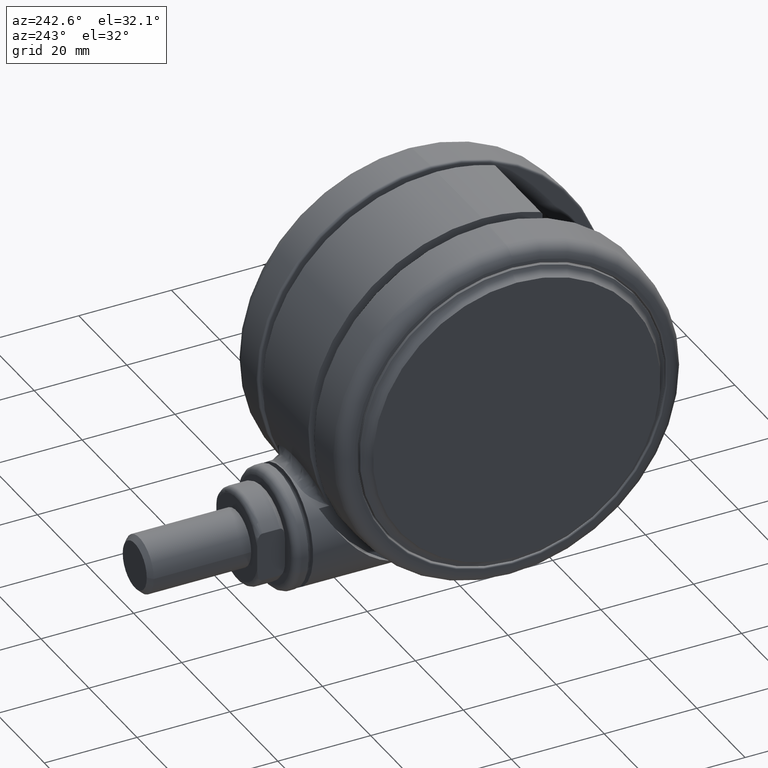
[diagram: clean part render]
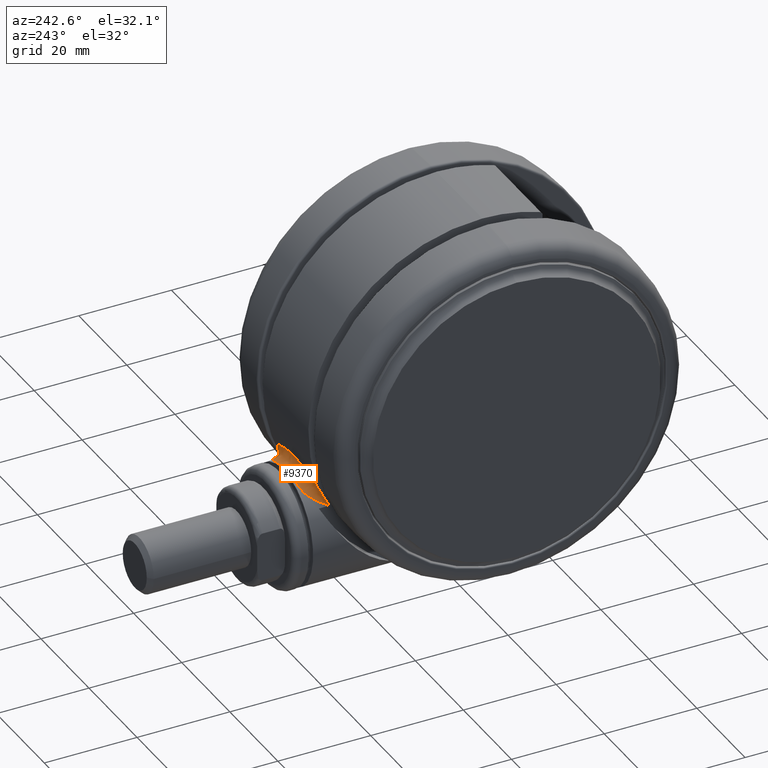
[diagram: same view with one face highlighted and labeled with its STEP entity id]
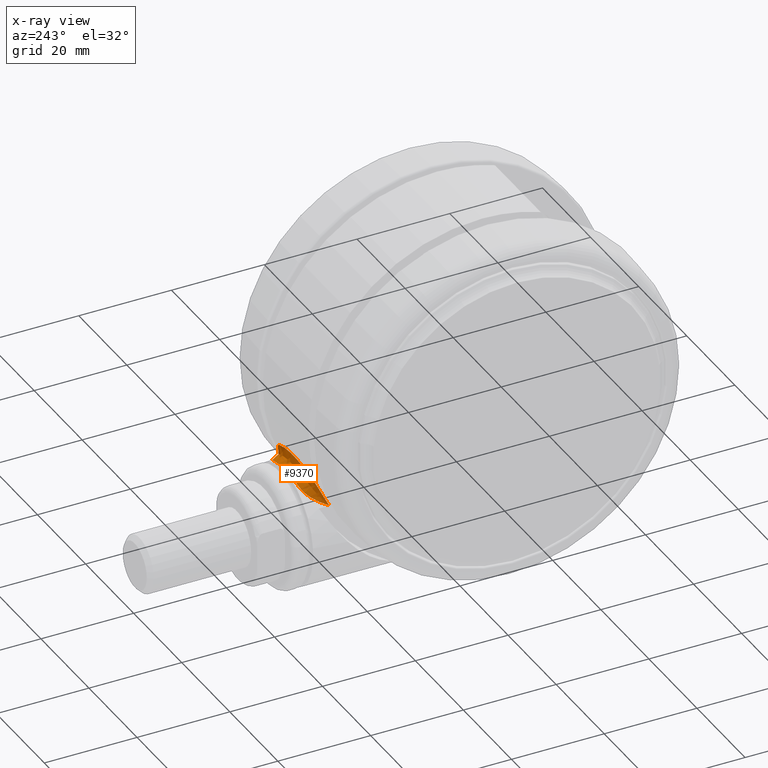
[diagram: x-ray of the same camera — body ghosted, the highlighted face saturated]
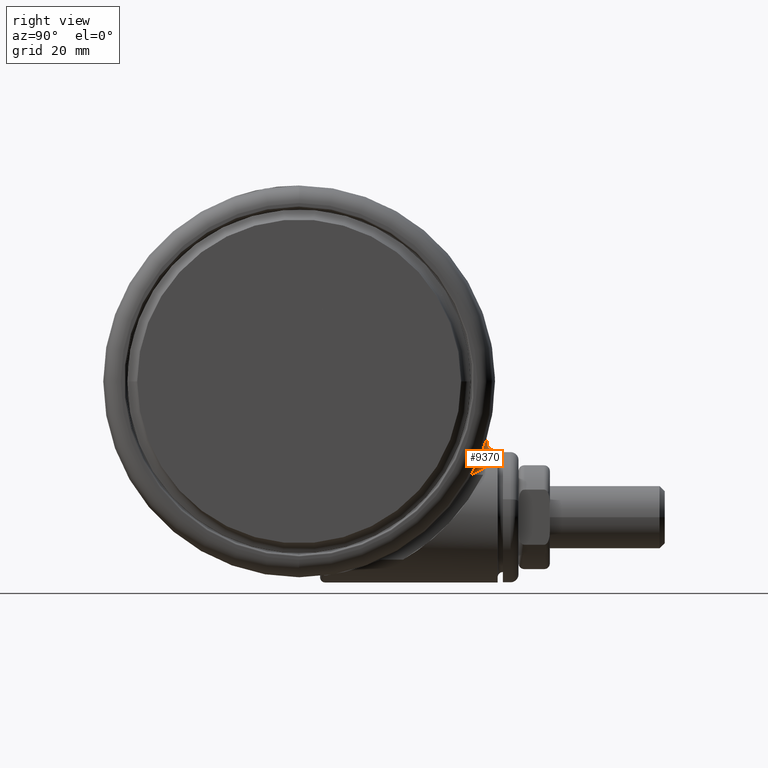
[diagram: same view with one face highlighted and labeled with its STEP entity id]
A machine part, auxiliary view. The second image highlights one B-rep face of the part: STEP entity #9370.
The next image is the same camera in x-ray: the body ghosted, the highlighted face saturated — about 0% of this face is hidden behind the body in this view.
A second angle (right view) of the same face is appended — the face is thin or edge-on in the first view.
In plain terms, the highlighted face is a freeform B-spline surface patch.
Its self-contained STEP definition (entity closure, byte-faithful):
#34 = CARTESIAN_POINT ( 'NONE',  ( -37.17807138266415000, 15.09026291100110500, -29.96931778137910400 ) ) ;
#238 = CARTESIAN_POINT ( 'NONE',  ( -37.74675141526227400, 13.61891928014333300, -25.58784706408022200 ) ) ;
#1056 = CARTESIAN_POINT ( 'NONE',  ( -37.03860752497755000, 15.27131529008433100, -17.42821774746808900 ) ) ;
#1061 = CARTESIAN_POINT ( 'NONE',  ( -34.17374281429799500, 15.55176465226365700, -16.95313922101129800 ) ) ;
#1237 = CARTESIAN_POINT ( 'NONE',  ( -34.39897654707523600, 17.17299355057763300, -14.99934645520417400 ) ) ;
#1240 = CARTESIAN_POINT ( 'NONE',  ( -35.04889504059254800, 13.60054897887007500, -25.45309923289870500 ) ) ;
#1432 = CARTESIAN_POINT ( 'NONE',  ( -33.62797461076387900, 16.62257758083178100, -32.13677909873963800 ) ) ;
#1636 = CARTESIAN_POINT ( 'NONE',  ( -36.85258640456079600, 15.48131111592417700, -17.09279901653389900 ) ) ;
#1818 = CARTESIAN_POINT ( 'NONE',  ( -37.73459447200993800, 13.65261988769249700, -25.81324177493818800 ) ) ;
#1833 = CARTESIAN_POINT ( 'NONE',  ( -33.74855305055628200, 16.34886742942891400, -14.48777842653169900 ) ) ;
#2004 = CARTESIAN_POINT ( 'NONE',  ( -34.19048319528715800, 17.28573835153243700, -32.81346263655697700 ) ) ;
#2018 = CARTESIAN_POINT ( 'NONE',  ( -34.80854054434564700, 13.95099757001450200, -15.45932252858041300 ) ) ;
#2227 = CARTESIAN_POINT ( 'NONE',  ( -35.83727846488871200, 11.04591427257370700, -26.13620901884722900 ) ) ;
#2421 = CARTESIAN_POINT ( 'NONE',  ( -35.05358651318327600, 13.32279263253058100, -31.70588074199074700 ) ) ;
#2608 = CARTESIAN_POINT ( 'NONE',  ( -34.25546440058223400, 15.26081914461748000, -32.92112524220795000 ) ) ;
#3488 = CARTESIAN_POINT ( 'NONE',  ( -34.85765492627155000, 13.83399860604602300, -15.50841076110303600 ) ) ;
#3695 = CARTESIAN_POINT ( 'NONE',  ( -35.83645361958053100, 11.04534839219524200, -25.84080098184053000 ) ) ;
#3884 = CARTESIAN_POINT ( 'NONE',  ( -34.01735465056644600, 15.79274081157089100, -33.10511777731263500 ) ) ;
#4353 = CARTESIAN_POINT ( 'NONE',  ( -35.24165437323256400, 16.69834082805648000, -32.20425819147875800 ) ) ;
#4546 = CARTESIAN_POINT ( 'NONE',  ( -37.30890925046993100, 14.76985732401867500, -29.34074406035636800 ) ) ;
#4732 = CARTESIAN_POINT ( 'NONE',  ( -37.78888815813663600, 13.50000000000512100, -24.35203608406470000 ) ) ;
#5366 = CARTESIAN_POINT ( 'NONE',  ( -37.65688757002210000, 13.86650569023318400, -20.84466366442686400 ) ) ;
#5549 = CARTESIAN_POINT ( 'NONE',  ( -36.49464123388848700, 15.83256383300727200, -16.56426332098979500 ) ) ;
#5550 = CARTESIAN_POINT ( 'NONE',  ( -34.39788749627481900, 15.09385656229451000, -17.71757758851280000 ) ) ;
#5739 = CARTESIAN_POINT ( 'NONE',  ( -34.32849527647442000, 17.21033227287744800, -14.96222662705281400 ) ) ;
#5743 = CARTESIAN_POINT ( 'NONE',  ( -35.00470186301787800, 13.70856163661858900, -26.14161265969620000 ) ) ;
#5930 = CARTESIAN_POINT ( 'NONE',  ( -33.30657835312381800, 17.23758622458353800, -32.77021357831600300 ) ) ;
#6119 = CARTESIAN_POINT ( 'NONE',  ( -37.14887970519999500, 15.11147704657052800, -17.70606729729698600 ) ) ;
#6317 = CARTESIAN_POINT ( 'NONE',  ( -37.68426858777605300, 13.79183997845135900, -26.54665770227154900 ) ) ;
#6329 = CARTESIAN_POINT ( 'NONE',  ( -33.89694862188486000, 16.04184581352117800, -14.54587980674308200 ) ) ;
#6509 = CARTESIAN_POINT ( 'NONE',  ( -33.45960648126130400, 17.64889336541688900, -33.15244360573519300 ) ) ;
#6520 = CARTESIAN_POINT ( 'NONE',  ( -34.94462946854872600, 13.60617642108611300, -15.72825485696239100 ) ) ;
#6554 = CARTESIAN_POINT ( 'NONE',  ( -32.96513305055641000, 17.87596159536909500, -14.34999999999999600 ) ) ;
#6715 = CARTESIAN_POINT ( 'NONE',  ( -35.66444644563750200, 11.59036802550866500, -28.36454313503864100 ) ) ;
#6899 = CARTESIAN_POINT ( 'NONE',  ( -35.02399458462328900, 13.40039134374328700, -31.78129400183771100 ) ) ;
#7100 = CARTESIAN_POINT ( 'NONE',  ( -33.98992791085908000, 15.84213023856710700, -33.10057941035696400 ) ) ;
#7977 = CARTESIAN_POINT ( 'NONE',  ( -35.15861622878514200, 13.04428975439406500, -16.28004811547514700 ) ) ;
#8169 = CARTESIAN_POINT ( 'NONE',  ( -35.79382532505053400, 11.18278353427754200, -26.69646967523515400 ) ) ;
#8356 = CARTESIAN_POINT ( 'NONE',  ( -33.50488905759140600, 16.84511802734503800, -33.29435449941308900 ) ) ;
#8843 = CARTESIAN_POINT ( 'NONE',  ( -35.74059160057964800, 16.37570381826597200, -31.82640714446571200 ) ) ;
#9030 = CARTESIAN_POINT ( 'NONE',  ( -37.41042270455412900, 14.51572329390120900, -28.79606308794359700 ) ) ;
#9370 = ADVANCED_FACE ( 'NONE', ( #41424 ), #44633, .T. ) ;
#9872 = CARTESIAN_POINT ( 'NONE',  ( -37.63933402685103100, 13.91418107671677300, -20.65829342374523100 ) ) ;
#10055 = CARTESIAN_POINT ( 'NONE',  ( -35.71634335001753200, 16.39556360759947400, -15.84968783692756700 ) ) ;
#10060 = CARTESIAN_POINT ( 'NONE',  ( -34.54507091611787200, 14.77965383299065400, -18.31760323703693400 ) ) ;
#10236 = CARTESIAN_POINT ( 'NONE',  ( -34.02649260630870000, 17.36731842812328700, -14.80904340306908800 ) ) ;
#10240 = CARTESIAN_POINT ( 'NONE',  ( -34.88265975318043400, 14.00343897340275100, -27.48953463529445100 ) ) ;
#10429 = CARTESIAN_POINT ( 'NONE',  ( -37.78888726018925600, 13.49999999585095400, -23.84999999999993700 ) ) ;
#10437 = CARTESIAN_POINT ( 'NONE',  ( -33.05269444882591000, 17.71448926617290500, -33.21191501130853400 ) ) ;
#10634 = CARTESIAN_POINT ( 'NONE',  ( -37.44753909376800000, 14.43040852789577700, -19.01622437866451400 ) ) ;
#10646 = CARTESIAN_POINT ( 'NONE',  ( -33.11190147707354500, 17.60530534664398800, -14.35084329638170300 ) ) ;
#10823 = CARTESIAN_POINT ( 'NONE',  ( -37.44974668052370200, 14.42476348074261600, -28.67081972117958700 ) ) ;
#10838 = CARTESIAN_POINT ( 'NONE',  ( -34.19558646008103900, 15.39258146638357900, -14.73364422646378600 ) ) ;
#11016 = CARTESIAN_POINT ( 'NONE',  ( -32.96513305055641000, 17.87596159536914100, -33.34999999999999400 ) ) ;
#11028 = CARTESIAN_POINT ( 'NONE',  ( -34.99309913857461400, 13.48086518731926700, -15.83938656661015200 ) ) ;
#11223 = CARTESIAN_POINT ( 'NONE',  ( -35.53693080205239600, 11.97454790169786200, -29.42973009704916600 ) ) ;
#11425 = CARTESIAN_POINT ( 'NONE',  ( -34.85694569858681300, 13.83122386879100300, -32.15496219691589600 ) ) ;
#11620 = CARTESIAN_POINT ( 'NONE',  ( -33.82136211275765400, 16.19777789117252500, -33.18281564967378500 ) ) ;
#12487 = CARTESIAN_POINT ( 'NONE',  ( -35.33361519658984000, 12.56196211779180400, -16.97190991744400500 ) ) ;
#12688 = CARTESIAN_POINT ( 'NONE',  ( -35.67508275028408300, 11.55900101596200400, -28.37204204366930300 ) ) ;
#12880 = CARTESIAN_POINT ( 'NONE',  ( -33.10212599653425500, 17.62333234982869400, -33.34983743420967500 ) ) ;
#13346 = CARTESIAN_POINT ( 'NONE',  ( -35.78149594127268100, 16.34806269835947700, -31.79294032207279100 ) ) ;
#13547 = CARTESIAN_POINT ( 'NONE',  ( -37.56350096353224900, 14.11900298293312900, -27.76586210574903300 ) ) ;
#14378 = CARTESIAN_POINT ( 'NONE',  ( -37.57549582825268400, 14.08604561948691400, -20.05295726341714900 ) ) ;
#14569 = CARTESIAN_POINT ( 'NONE',  ( -35.68279720689225300, 16.41785211703117400, -15.82300875197062100 ) ) ;
#14573 = CARTESIAN_POINT ( 'NONE',  ( -34.88094722289059700, 14.00752211847990500, -20.19687928492646700 ) ) ;
#14767 = CARTESIAN_POINT ( 'NONE',  ( -33.22848561435678500, 17.75652982371613600, -14.45213350522554100 ) ) ;
#14771 = CARTESIAN_POINT ( 'NONE',  ( -34.54697656455400800, 14.77539431328410100, -29.37370272286503300 ) ) ;
#14956 = CARTESIAN_POINT ( 'NONE',  ( -32.96513305055641000, 17.87596159536909500, -14.34999999999999600 ) ) ;
#15142 = CARTESIAN_POINT ( 'NONE',  ( -37.70452397610234400, 13.73664583465529700, -21.37919916334207900 ) ) ;
#15324 = CARTESIAN_POINT ( 'NONE',  ( -37.15087951976549600, 15.10664678029152900, -29.98534011575282700 ) ) ;
#15339 = CARTESIAN_POINT ( 'NONE',  ( -34.37255796271246300, 14.99282169027690900, -14.88593320503841800 ) ) ;
#15551 = CARTESIAN_POINT ( 'NONE',  ( -35.17115331213590700, 13.01681517840886600, -16.27321465314751600 ) ) ;
#15744 = CARTESIAN_POINT ( 'NONE',  ( -35.42241820564766600, 12.30931760028349400, -30.20930570907253100 ) ) ;
#15784 = EDGE_LOOP ( 'NONE', ( #43326, #45734, #55768 ) ) ;
#15923 = CARTESIAN_POINT ( 'NONE',  ( -34.64811035369255200, 14.34533024688712600, -32.49038050886329600 ) ) ;
#16122 = CARTESIAN_POINT ( 'NONE',  ( -33.77992337873438800, 16.28394512107697500, -33.20033637262886800 ) ) ;
#16893 = CARTESIAN_POINT ( 'NONE',  ( -33.50130026665721800, 17.63400630427569400, -33.14308904452119700 ) ) ;
#17009 = CARTESIAN_POINT ( 'NONE',  ( -35.67339877937588700, 11.56423037785692300, -19.31104826235107600 ) ) ;
#17197 = CARTESIAN_POINT ( 'NONE',  ( -35.33558277405818900, 12.55642788417154400, -30.71729185790173500 ) ) ;
#17388 = CARTESIAN_POINT ( 'NONE',  ( -32.96513305055648900, 17.87596159536910900, -14.34999999999998700 ) ) ;
#17675 = CARTESIAN_POINT ( 'NONE',  ( -33.98789091687829300, 17.39463794631984700, -32.92238546492384900 ) ) ;
#17864 = CARTESIAN_POINT ( 'NONE',  ( -35.91006725852585600, 16.25975013559556400, -31.68473065719149100 ) ) ;
#18048 = CARTESIAN_POINT ( 'NONE',  ( -37.66794380437774900, 13.83636068911157900, -26.73095816064050100 ) ) ;
#18881 = CARTESIAN_POINT ( 'NONE',  ( -37.43060009301046900, 14.46491797806571700, -19.00912385999973300 ) ) ;
#19076 = CARTESIAN_POINT ( 'NONE',  ( -35.56388025160494200, 16.49579862778182000, -15.73062577245000100 ) ) ;
#19080 = CARTESIAN_POINT ( 'NONE',  ( -35.03779678078577600, 13.62783847496002700, -22.00344335855457000 ) ) ;
#19262 = CARTESIAN_POINT ( 'NONE',  ( -34.40013626845866700, 15.08892679058079600, -29.97354806126016100 ) ) ;
#19453 = CARTESIAN_POINT ( 'NONE',  ( -33.95706701582945900, 17.40866439977698800, -14.76351741371781800 ) ) ;
#19652 = CARTESIAN_POINT ( 'NONE',  ( -37.77848217727429200, 13.52961798361327600, -22.85741396845240900 ) ) ;
#19664 = CARTESIAN_POINT ( 'NONE',  ( -33.45088866307712300, 16.95020173077574200, -14.39913552298489900 ) ) ;
#19855 = CARTESIAN_POINT ( 'NONE',  ( -36.85523137825534700, 15.47514836250827800, -30.59759724653293800 ) ) ;
#19870 = CARTESIAN_POINT ( 'NONE',  ( -34.43686933775841700, 14.84426782371078200, -14.95144108949809500 ) ) ;
#20063 = CARTESIAN_POINT ( 'NONE',  ( -35.55105616837676100, 11.94350055059518200, -18.24043040017240000 ) ) ;
#20255 = CARTESIAN_POINT ( 'NONE',  ( -35.28448262307208000, 12.69985590524460200, -30.95352885961778700 ) ) ;
#20463 = CARTESIAN_POINT ( 'NONE',  ( -34.51198955148856800, 14.66883200693862000, -32.66101048390999800 ) ) ;
#20652 = CARTESIAN_POINT ( 'NONE',  ( -33.76690501163747600, 16.31092265880968700, -33.20564911879699100 ) ) ;
#21318 = CARTESIAN_POINT ( 'NONE',  ( -32.96513305055641000, 17.87596159536909500, -14.34999999999999600 ) ) ;
#21512 = CARTESIAN_POINT ( 'NONE',  ( -35.82580289442363900, 11.08000212164020200, -21.55686559132104900 ) ) ;
#21709 = CARTESIAN_POINT ( 'NONE',  ( -35.16097126698004200, 13.03793260878092600, -31.40902487051596000 ) ) ;
#21916 = CARTESIAN_POINT ( 'NONE',  ( -33.31075891964085400, 17.23063112684611700, -14.92855088998428300 ) ) ;
#22184 = CARTESIAN_POINT ( 'NONE',  ( -34.45589902419552400, 17.14300612905888200, -32.67064625218871000 ) ) ;
#22374 = CARTESIAN_POINT ( 'NONE',  ( -36.39849361107270900, 15.89833134434546700, -31.21853575177502200 ) ) ;
#22576 = CARTESIAN_POINT ( 'NONE',  ( -37.68272169829046400, 13.79593581427936600, -26.55454304295514600 ) ) ;
#23399 = CARTESIAN_POINT ( 'NONE',  ( -37.24251753729347300, 14.93312240970348400, -18.03722452611921800 ) ) ;
#23595 = CARTESIAN_POINT ( 'NONE',  ( -35.02548648356891900, 16.82900996507730400, -15.35253948476884600 ) ) ;
#23599 = CARTESIAN_POINT ( 'NONE',  ( -35.08957245475901500, 13.50026870854876500, -23.38262369497622100 ) ) ;
#23780 = CARTESIAN_POINT ( 'NONE',  ( -34.17644761613609500, 15.54598766605077200, -30.73802422364465100 ) ) ;
#23980 = CARTESIAN_POINT ( 'NONE',  ( -35.33746860769130600, 16.64900709305663500, -15.54482651698814700 ) ) ;
#24163 = CARTESIAN_POINT ( 'NONE',  ( -37.78899475236119100, 13.49969548799079700, -24.33466719716080800 ) ) ;
#24178 = CARTESIAN_POINT ( 'NONE',  ( -33.65720794777793400, 16.53635077952866100, -14.45498855017540400 ) ) ;
#24360 = CARTESIAN_POINT ( 'NONE',  ( -36.12142650631075500, 16.12014025679088300, -31.51857749262605800 ) ) ;
#24374 = CARTESIAN_POINT ( 'NONE',  ( -34.45529824199443400, 14.80144331434959600, -14.97105740589504900 ) ) ;
#24487 = VERTEX_POINT ( 'NONE', #6554 ) ;
#24499 = B_SPLINE_CURVE_WITH_KNOTS ( 'NONE', 3,
 ( #54347, #49977, #32167, #5366, #36712, #9872, #41195, #14378, #45689, #18881, #50169, #23399, #54742, #27872, #1056, #32361, #5549, #36894, #10055, #41385, #14569, #45883, #19076, #50361, #23595, #54905, #28056, #1237, #32549, #5739, #37083, #10236, #41587, #14767, #46063 ),
 .UNSPECIFIED., .F., .F.,
 ( 4, 2, 2, 1, 1, 2, 2, 2, 1, 2, 2, 2, 1, 1, 1, 1, 2, 2, 1, 1, 1, 1, 4 ),
 ( 0.4996769114355315600, 0.6247576835766610600, 0.6325752318354817000, 0.6403927800943023400, 0.6560278766119431700, 0.6872980696472242900, 0.7498384557177870700, 0.7654735522354274600, 0.7811086487530678500, 0.8123788417883486300, 0.8749192278589104100, 0.8768736149236153700, 0.8788280019883204500, 0.8827367761177300500, 0.8905543243765486900, 0.9061894208941863000, 0.9374596139294613100, 0.9394140009941659400, 0.9413683880588705800, 0.9452771621882794000, 0.9530947104470970400, 0.9687298069647315400, 1.000000000000000000 ),
 .UNSPECIFIED. ) ;
#24572 = CARTESIAN_POINT ( 'NONE',  ( -35.83644962373046600, 11.04863283346649200, -21.54606597603657300 ) ) ;
#24767 = CARTESIAN_POINT ( 'NONE',  ( -35.16131326167757700, 13.03617895512728000, -31.39717925901679200 ) ) ;
#24953 = CARTESIAN_POINT ( 'NONE',  ( -34.47821666605545900, 14.74797861096521800, -32.69935554490765400 ) ) ;
#25139 = CARTESIAN_POINT ( 'NONE',  ( -33.26236133042374400, 17.32784172277147400, -33.34964728731200300 ) ) ;
#25808 = CARTESIAN_POINT ( 'NONE',  ( -34.01627619085549300, 15.79494220826508800, -14.59264737852200800 ) ) ;
#26026 = CARTESIAN_POINT ( 'NONE',  ( -35.87542219382928000, 10.91806221539990100, -23.26971089613470100 ) ) ;
#26214 = CARTESIAN_POINT ( 'NONE',  ( -34.86054075366354300, 13.82671155851608600, -32.18098330981908400 ) ) ;
#26480 = CARTESIAN_POINT ( 'NONE',  ( -32.96513305055641000, 17.87596159536909500, -33.34999999999999400 ) ) ;
#26669 = CARTESIAN_POINT ( 'NONE',  ( -34.53302668276548800, 17.10121523392328400, -32.62853155252334900 ) ) ;
#26858 = CARTESIAN_POINT ( 'NONE',  ( -37.00636203249267500, 15.32440550435346100, -30.36845695257010300 ) ) ;
#27055 = CARTESIAN_POINT ( 'NONE',  ( -37.72699943724553900, 13.67403678697634800, -25.95387369124395600 ) ) ;
#27872 = CARTESIAN_POINT ( 'NONE',  ( -37.15131417960477500, 15.09936456126421700, -17.73119965019468200 ) ) ;
#27877 = CARTESIAN_POINT ( 'NONE',  ( -34.04786022060440600, 15.80144095558888000, -16.58979892285957200 ) ) ;
#28056 = CARTESIAN_POINT ( 'NONE',  ( -34.41154723433455600, 17.16630871626282900, -15.00601695592819200 ) ) ;
#28060 = CARTESIAN_POINT ( 'NONE',  ( -35.07973700257817700, 13.52469335815025700, -24.76313931830615200 ) ) ;
#28246 = CARTESIAN_POINT ( 'NONE',  ( -33.77632810399924100, 16.33406240076083200, -31.80188308836871900 ) ) ;
#28426 = CARTESIAN_POINT ( 'NONE',  ( -36.45715293299464600, 15.86367269352543400, -16.52093507873732700 ) ) ;
#28615 = CARTESIAN_POINT ( 'NONE',  ( -37.74773114590949100, 13.61589106865423700, -25.56620774297899200 ) ) ;
#28631 = CARTESIAN_POINT ( 'NONE',  ( -33.73345561676915600, 16.37999607395313000, -14.48208042247181400 ) ) ;
#28818 = CARTESIAN_POINT ( 'NONE',  ( -34.89629156641541400, 16.90623804013983600, -32.43379679846219700 ) ) ;
#28831 = CARTESIAN_POINT ( 'NONE',  ( -34.67153542202645900, 14.28964462758908600, -15.23272645991100500 ) ) ;
#29026 = CARTESIAN_POINT ( 'NONE',  ( -35.87574543954577400, 10.91700003342874000, -24.99745364820033400 ) ) ;
#29216 = CARTESIAN_POINT ( 'NONE',  ( -35.08199316023841200, 13.24796741146401400, -31.63093731492925500 ) ) ;
#29416 = CARTESIAN_POINT ( 'NONE',  ( -34.36378748340349900, 15.01484170327931300, -32.82485630585102900 ) ) ;
#30314 = CARTESIAN_POINT ( 'NONE',  ( -34.67248262017555000, 14.29522840312018600, -15.20740261227356500 ) ) ;
#30504 = CARTESIAN_POINT ( 'NONE',  ( -35.86605944771658700, 10.94898608210510300, -24.98361602534723500 ) ) ;
#30703 = CARTESIAN_POINT ( 'NONE',  ( -34.25375667771400100, 15.27141773901253800, -32.94542931630756800 ) ) ;
#31172 = CARTESIAN_POINT ( 'NONE',  ( -34.84723781471375800, 16.92704580663302500, -32.44926920360511200 ) ) ;
#31353 = CARTESIAN_POINT ( 'NONE',  ( -37.28722122107653500, 14.82371353414630600, -29.44948851899472300 ) ) ;
#31548 = CARTESIAN_POINT ( 'NONE',  ( -37.77835431001303600, 13.53027790835047600, -24.85055974152622600 ) ) ;
#32167 = CARTESIAN_POINT ( 'NONE',  ( -37.74664549877657300, 13.62179049934990100, -21.85375921167925700 ) ) ;
#32361 = CARTESIAN_POINT ( 'NONE',  ( -36.87839787176400800, 15.45401815434183500, -17.13550476935135700 ) ) ;
#32365 = CARTESIAN_POINT ( 'NONE',  ( -34.34418491754159000, 15.20486381891663200, -17.52337131982684000 ) ) ;
#32549 = CARTESIAN_POINT ( 'NONE',  ( -34.37083022673949300, 17.18792756977317600, -14.98447742585992000 ) ) ;
#32553 = CARTESIAN_POINT ( 'NONE',  ( -35.03592438154898800, 13.63237471393597000, -25.68373424116168000 ) ) ;
#32739 = CARTESIAN_POINT ( 'NONE',  ( -33.38887258516712800, 17.08095599151947400, -32.61521567197790000 ) ) ;
#32929 = CARTESIAN_POINT ( 'NONE',  ( -36.96566779395259800, 15.35586847465197900, -17.29177575606023600 ) ) ;
#33124 = CARTESIAN_POINT ( 'NONE',  ( -37.70282934231759200, 13.74068849677139800, -26.30385316827985100 ) ) ;
#33138 = CARTESIAN_POINT ( 'NONE',  ( -33.75524150863230200, 16.33505548379528300, -14.49034498076792100 ) ) ;
#33319 = CARTESIAN_POINT ( 'NONE',  ( -33.94861905508775400, 17.40974626617564200, -32.93206913916512200 ) ) ;
#33331 = CARTESIAN_POINT ( 'NONE',  ( -34.87382066471215600, 13.78726986172973300, -15.57860862776366100 ) ) ;
#33515 = CARTESIAN_POINT ( 'NONE',  ( -35.71533081911700700, 11.43168106416493200, -27.81725562520783200 ) ) ;
#33715 = CARTESIAN_POINT ( 'NONE',  ( -35.03433940001691100, 13.37332396119449400, -31.75538519209697300 ) ) ;
#33902 = CARTESIAN_POINT ( 'NONE',  ( -34.08051797755488400, 15.64570723705479200, -33.04429953894104000 ) ) ;
#33959 = EDGE_CURVE ( 'NONE', #44791, #24487, #24499, .T. ) ;
#34800 = CARTESIAN_POINT ( 'NONE',  ( -35.08913300214229700, 13.23061416774538500, -16.07312536217510500 ) ) ;
#35002 = CARTESIAN_POINT ( 'NONE',  ( -35.82398209361483800, 11.08579658532038100, -26.12736045889779700 ) ) ;
#35205 = CARTESIAN_POINT ( 'NONE',  ( -33.63613969477641100, 16.58147690570578800, -33.25813883818097600 ) ) ;
#35661 = CARTESIAN_POINT ( 'NONE',  ( -35.54367925086746300, 16.50779710851279000, -31.98547502401096700 ) ) ;
#35866 = CARTESIAN_POINT ( 'NONE',  ( -37.35034972952257700, 14.66660293085275100, -29.12432324874757900 ) ) ;
#36056 = CARTESIAN_POINT ( 'NONE',  ( -37.78888726018925600, 13.49999999585095400, -23.84999999999993700 ) ) ;
#36712 = CARTESIAN_POINT ( 'NONE',  ( -37.65102199605885100, 13.88246441279999700, -20.78090547420906700 ) ) ;
#36894 = CARTESIAN_POINT ( 'NONE',  ( -36.15435370004019700, 16.10244283891283200, -16.20237817685924900 ) ) ;
#36897 = CARTESIAN_POINT ( 'NONE',  ( -34.49844445796182400, 14.88105216425085700, -18.11502993750257000 ) ) ;
#37083 = CARTESIAN_POINT ( 'NONE',  ( -34.22890543752591700, 17.26263383934439200, -14.91067650727157300 ) ) ;
#37087 = CARTESIAN_POINT ( 'NONE',  ( -34.98651410069469100, 13.75276575923086500, -26.36814884130639000 ) ) ;
#37269 = CARTESIAN_POINT ( 'NONE',  ( -33.13857544515051500, 17.55418510997964900, -33.06838115432041300 ) ) ;
#37454 = CARTESIAN_POINT ( 'NONE',  ( -37.21807467356439500, 14.99304606086907800, -17.92061199776521700 ) ) ;
#37655 = CARTESIAN_POINT ( 'NONE',  ( -37.57775382993354900, 14.08231126764215600, -27.74831210652135000 ) ) ;
#37665 = CARTESIAN_POINT ( 'NONE',  ( -34.02132656832804300, 15.77587172626942700, -14.61242143848801500 ) ) ;
#37843 = CARTESIAN_POINT ( 'NONE',  ( -33.21223921558940600, 17.76445040576984300, -33.25463987506822900 ) ) ;
#37858 = CARTESIAN_POINT ( 'NONE',  ( -34.97385839475741400, 13.53070369582620300, -15.79463447950862200 ) ) ;
#38058 = CARTESIAN_POINT ( 'NONE',  ( -35.57095999705514800, 11.87293761872024200, -29.16588236135079300 ) ) ;
#38252 = CARTESIAN_POINT ( 'NONE',  ( -34.93967838083742100, 13.62030483182588200, -31.98747399800771500 ) ) ;
#38430 = CARTESIAN_POINT ( 'NONE',  ( -33.87852537674881100, 16.07810594919142100, -33.15695152567876400 ) ) ;
#38636 = CARTESIAN_POINT ( 'NONE',  ( -33.77449811342493300, 16.33778778012699800, -15.89367691778916500 ) ) ;
#39128 = CARTESIAN_POINT ( 'NONE',  ( -33.24021914865670600, 17.36867420968894400, -14.35158057912512700 ) ) ;
#39319 = CARTESIAN_POINT ( 'NONE',  ( -35.28106522421969500, 12.70937555365878400, -16.72976527988882700 ) ) ;
#39512 = CARTESIAN_POINT ( 'NONE',  ( -35.77620435539678600, 11.23911491305264200, -26.97812293460887600 ) ) ;
#39709 = CARTESIAN_POINT ( 'NONE',  ( -33.23798780140010200, 17.36582157661049300, -33.33997472693101100 ) ) ;
#40163 = CARTESIAN_POINT ( 'NONE',  ( -35.75527072589574100, 16.36581684138045700, -31.81446542468364300 ) ) ;
#40369 = CARTESIAN_POINT ( 'NONE',  ( -37.46423244894339900, 14.37740566262492300, -28.45714851143590700 ) ) ;
#41195 = CARTESIAN_POINT ( 'NONE',  ( -37.62127965182391900, 13.96305667913137000, -20.47511163794540700 ) ) ;
#41385 = CARTESIAN_POINT ( 'NONE',  ( -35.70619478164075400, 16.40232257528305800, -15.84158351494487100 ) ) ;
#41389 = CARTESIAN_POINT ( 'NONE',  ( -34.75719755658582200, 14.30204310741729900, -19.34037190880945900 ) ) ;
#41424 = FACE_OUTER_BOUND ( 'NONE', #15784, .T. ) ;
#41587 = CARTESIAN_POINT ( 'NONE',  ( -33.60873433059363400, 17.57690106327946800, -14.61159278328565300 ) ) ;
#41590 = CARTESIAN_POINT ( 'NONE',  ( -34.75927805992285600, 14.29723065711040800, -28.34756272085775600 ) ) ;
#41784 = CARTESIAN_POINT ( 'NONE',  ( -32.96513305055643200, 17.87596159536914400, -33.34999999999993700 ) ) ;
#41963 = CARTESIAN_POINT ( 'NONE',  ( -37.57598004724425100, 14.08705976872397500, -19.93711057109323500 ) ) ;
#41980 = CARTESIAN_POINT ( 'NONE',  ( -32.96513305055641000, 17.87596159536909500, -14.34999999999999600 ) ) ;
#42165 = CARTESIAN_POINT ( 'NONE',  ( -37.22014718849665400, 14.98802072228217800, -29.77007918788352500 ) ) ;
#42179 = CARTESIAN_POINT ( 'NONE',  ( -34.27963842994370200, 15.20485235438133700, -14.79960820554124900 ) ) ;
#42377 = CARTESIAN_POINT ( 'NONE',  ( -35.00202491423014100, 13.45767525981043600, -15.86061669360963600 ) ) ;
#42569 = CARTESIAN_POINT ( 'NONE',  ( -35.46275340721438600, 12.19247181907845800, -29.95089488896789500 ) ) ;
#42758 = CARTESIAN_POINT ( 'NONE',  ( -34.71988438780099500, 14.17019697758091600, -32.38252013208044400 ) ) ;
#42940 = CARTESIAN_POINT ( 'NONE',  ( -33.79241077278486900, 16.25803236778878600, -33.19516722825481000 ) ) ;
#43326 = ORIENTED_EDGE ( 'NONE', *, *, #54515, .F. ) ;
#43816 = CARTESIAN_POINT ( 'NONE',  ( -35.55146116429779100, 11.94234863147906400, -18.24282027910546900 ) ) ;
#44002 = CARTESIAN_POINT ( 'NONE',  ( -35.55355697450478700, 11.93613193392770300, -29.44215087674096400 ) ) ;
#44203 = CARTESIAN_POINT ( 'NONE',  ( -32.96513305055641000, 17.87596159536914100, -33.34999999999999400 ) ) ;
#44633 =( BOUNDED_SURFACE ( )  B_SPLINE_SURFACE ( 2, 3, ( 
 ( #21318, #39128, #52629, #25808, #57144, #30314, #3488, #34800, #7977, #39319, #12487, #43816, #17009, #48269, #21512, #52829, #26026, #57337, #30504, #3695, #35002, #8169, #39512, #12688, #44002, #17197, #48475, #21709, #53025, #26214, #57540, #30703, #3884, #35205, #8356, #39709, #12880, #44203 ),
 ( #17388, #48677, #21916, #53208, #38636, #27877, #1061, #32365, #5550, #36897, #10060, #41389, #14573, #45886, #19080, #50364, #23599, #54909, #28060, #1240, #32553, #5743, #37087, #10240, #41590, #14771, #46067, #19262, #50556, #23780, #55090, #28246, #1432, #32739, #5930, #37269, #10437, #41784 ),
 ( #14956, #46245, #19453, #50745, #23980, #55268, #28426, #1636, #32929, #6119, #37454, #10634, #41963, #15142, #46436, #19652, #50930, #24163, #55463, #28615, #1818, #33124, #6317, #37655, #10823, #42165, #15324, #46636, #19855, #51126, #24360, #55664, #28818, #2004, #33319, #6509, #37843, #11016 ) ),
 .UNSPECIFIED., .F., .F., .F. ) 
 B_SPLINE_SURFACE_WITH_KNOTS ( ( 3, 3 ),
 ( 4, 2, 2, 2, 2, 2, 2, 2, 2, 2, 2, 2, 2, 2, 2, 2, 2, 2, 4 ),
 ( 0.0000000000000000000, 1.000000000000000000 ),
 ( 0.03781283938642594800, 0.03918005545309729400, 0.04054727151976860600, 0.04191448758643989700, 0.04259809561977554600, 0.04328170365311120200, 0.04601613578645380500, 0.04738335185312510200, 0.04875056791979640000, 0.05011778398646769800, 0.05080139201980340300, 0.05148500005313900300, 0.05421943218648169600, 0.05490304021981730300, 0.05558664825315300100, 0.05695386431982429900, 0.05832108038649560400, 0.05900468841983119700, 0.05968829645316690200 ),
 .UNSPECIFIED. ) 
 GEOMETRIC_REPRESENTATION_ITEM ( )  RATIONAL_B_SPLINE_SURFACE ( (
 ( 1.000000000000000000, 1.000000000000000000, 1.000000000000000000, 1.000000000000000000, 1.000000000000000000, 1.000000000000000000, 1.000000000000000000, 1.000000000000000000, 1.000000000000000000, 1.000000000000000000, 1.000000000000000000, 1.000000000000000000, 1.000000000000000000, 1.000000000000000000, 1.000000000000000000, 1.000000000000000000, 1.000000000000000000, 1.000000000000000000, 1.000000000000000000, 1.000000000000000000, 1.000000000000000000, 1.000000000000000000, 1.000000000000000000, 1.000000000000000000, 1.000000000000000000, 1.000000000000000000, 1.000000000000000000, 1.000000000000000000, 1.000000000000000000, 1.000000000000000000, 1.000000000000000000, 1.000000000000000000, 1.000000000000000000, 1.000000000000000000, 1.000000000000000000, 1.000000000000000000, 1.000000000000000000, 1.000000000000000000),
 ( 0.5874464528034729600, 0.5875324384632290000, 0.5878190733726970100, 0.5888003131190080500, 0.5894892052926800100, 0.5910256616108610100, 0.5918756248778900300, 0.5928964022353500100, 0.5931919905297230500, 0.5936043574522330600, 0.5937156376485189800, 0.5936183243862870300, 0.5941277899170579500, 0.5947783283382329600, 0.5949824915389829700, 0.5952624463378419800, 0.5953397684494029500, 0.5953413347357979800, 0.5952655721708939300, 0.5950572140397190100, 0.5949721148472370000, 0.5947814355570860700, 0.5946762757786510100, 0.5941350080383739400, 0.5936219650701619600, 0.5937136469980269800, 0.5936012584474439400, 0.5931848772463460500, 0.5928868357570799000, 0.5918586390053349700, 0.5910035118405350100, 0.5894681176926720400, 0.5887856422041000100, 0.5880784214532259700, 0.5878911922556019400, 0.5876008266606009800, 0.5875001097184200400, 0.5874464528034739600),
 ( 1.000000000000000000, 1.000000000000000000, 1.000000000000000000, 1.000000000000000000, 1.000000000000000000, 1.000000000000000000, 1.000000000000000000, 1.000000000000000000, 1.000000000000000000, 1.000000000000000000, 1.000000000000000000, 1.000000000000000000, 1.000000000000000000, 1.000000000000000000, 1.000000000000000000, 1.000000000000000000, 1.000000000000000000, 1.000000000000000000, 1.000000000000000000, 1.000000000000000000, 1.000000000000000000, 1.000000000000000000, 1.000000000000000000, 1.000000000000000000, 1.000000000000000000, 1.000000000000000000, 1.000000000000000000, 1.000000000000000000, 1.000000000000000000, 1.000000000000000000, 1.000000000000000000, 1.000000000000000000, 1.000000000000000000, 1.000000000000000000, 1.000000000000000000, 1.000000000000000000, 1.000000000000000000, 1.000000000000000000) ) ) 
 REPRESENTATION_ITEM ( '' )  SURFACE ( )  );
#44665 = CARTESIAN_POINT ( 'NONE',  ( -35.82058652953504200, 16.32147563831045600, -31.76059608167806300 ) ) ;
#44791 = VERTEX_POINT ( 'NONE', #10429 ) ;
#44852 = CARTESIAN_POINT ( 'NONE',  ( -37.61854534100520200, 13.97105223113931800, -27.28701221149563200 ) ) ;
#45689 = CARTESIAN_POINT ( 'NONE',  ( -37.52998349632086700, 14.20625422493705900, -19.70052890635592700 ) ) ;
#45734 = ORIENTED_EDGE ( 'NONE', *, *, #33959, .F. ) ;
#45883 = CARTESIAN_POINT ( 'NONE',  ( -35.64751415945868700, 16.44117549304758800, -15.79519409571210400 ) ) ;
#45886 = CARTESIAN_POINT ( 'NONE',  ( -35.00623330883327400, 13.70519411409323100, -21.54237789524676600 ) ) ;
#46063 = CARTESIAN_POINT ( 'NONE',  ( -32.96513305055641000, 17.87596159536909500, -14.34999999999999600 ) ) ;
#46067 = CARTESIAN_POINT ( 'NONE',  ( -34.50028574053053600, 14.87696023003576500, -29.57693788961685400 ) ) ;
#46245 = CARTESIAN_POINT ( 'NONE',  ( -33.46071496589620900, 17.65121259238203800, -14.54219679280742600 ) ) ;
#46436 = CARTESIAN_POINT ( 'NONE',  ( -37.73651238202793900, 13.64735824815737800, -21.87315999249299000 ) ) ;
#46449 = CARTESIAN_POINT ( 'NONE',  ( -33.25150979078379300, 17.33990371621792900, -14.36323258917563600 ) ) ;
#46636 = CARTESIAN_POINT ( 'NONE',  ( -36.96812809976174900, 15.35006045748762700, -30.39876556658830600 ) ) ;
#46650 = CARTESIAN_POINT ( 'NONE',  ( -34.41776207143799800, 14.88856851556067800, -14.93143746076368700 ) ) ;
#46832 = CARTESIAN_POINT ( 'NONE',  ( -35.29024850100876900, 12.68530885549642700, -16.71892278457825000 ) ) ;
#47040 = CARTESIAN_POINT ( 'NONE',  ( -35.33593702264737900, 12.55541978796197200, -30.71522161426664600 ) ) ;
#47231 = CARTESIAN_POINT ( 'NONE',  ( -34.55838804143548500, 14.55938865956127000, -32.60586008121094200 ) ) ;
#47417 = CARTESIAN_POINT ( 'NONE',  ( -33.77158069280220300, 16.30124012733273300, -33.20375482681079400 ) ) ;
#48269 = CARTESIAN_POINT ( 'NONE',  ( -35.79543415435424000, 11.17833148897550200, -20.98387102953536500 ) ) ;
#48475 = CARTESIAN_POINT ( 'NONE',  ( -35.28297307748918900, 12.70407013368882300, -30.96027164989843400 ) ) ;
#48677 = CARTESIAN_POINT ( 'NONE',  ( -33.14143831805642300, 17.55083633759142400, -14.62803474273937700 ) ) ;
#48944 = CARTESIAN_POINT ( 'NONE',  ( -34.43856169135528200, 17.15235198404576200, -32.68001882396008300 ) ) ;
#49147 = CARTESIAN_POINT ( 'NONE',  ( -36.08210614202207000, 16.13755813983315700, -31.53142240237578900 ) ) ;
#49340 = CARTESIAN_POINT ( 'NONE',  ( -37.67284559675042700, 13.82296723380632400, -26.67375790949435600 ) ) ;
#49464 = B_SPLINE_CURVE_WITH_KNOTS ( 'NONE', 3,
 ( #26480, #16893, #17675, #48944, #22184, #53501, #26669, #58003, #31172, #4353, #35661, #8843, #40163, #13346, #44665, #17864, #49147, #22374, #53692, #26858, #34, #31353, #4546, #35866, #9030, #40369, #13547, #44852, #18048, #49340, #22576, #53891, #27055, #238, #31548, #4732, #36056 ),
 .UNSPECIFIED., .F., .F.,
 ( 4, 2, 2, 1, 1, 1, 1, 2, 2, 1, 1, 1, 1, 2, 2, 2, 1, 2, 2, 2, 1, 1, 2, 4 ),
 ( 0.0000000000000000000, 0.06245961392945582900, 0.06441147686475079400, 0.06636333980004575900, 0.07026706567063585600, 0.07807451741181500900, 0.09368942089417364700, 0.1249192278588911300, 0.1268710907941864900, 0.1288229537294818300, 0.1327266796000719200, 0.1405341313412515900, 0.1561490348236109200, 0.1873788417883301400, 0.2498384557177687200, 0.2654533592001285200, 0.2810682626824883600, 0.3122980696472083500, 0.3747576835766482900, 0.3825651353178285400, 0.3903725870590086800, 0.4059874905413691200, 0.4372172975060899500, 0.4996769114355315600 ),
 .UNSPECIFIED. ) ;
#49977 = CARTESIAN_POINT ( 'NONE',  ( -37.78888545504825900, 13.50000000000512500, -22.84462937589622900 ) ) ;
#50169 = CARTESIAN_POINT ( 'NONE',  ( -37.35319950487456700, 14.66168757054945000, -18.56616766091378100 ) ) ;
#50361 = CARTESIAN_POINT ( 'NONE',  ( -35.39138524719547300, 16.60584046880565300, -15.60282020329324300 ) ) ;
#50364 = CARTESIAN_POINT ( 'NONE',  ( -35.07930578537893500, 13.52576034358648900, -22.92253945932189300 ) ) ;
#50556 = CARTESIAN_POINT ( 'NONE',  ( -34.34659285362984300, 15.19962158588772600, -30.16759502487327900 ) ) ;
#50745 = CARTESIAN_POINT ( 'NONE',  ( -34.89521235195415700, 16.90838767574318900, -15.26409302799726800 ) ) ;
#50930 = CARTESIAN_POINT ( 'NONE',  ( -37.78877804416719500, 13.50030936801323700, -23.34975077253017900 ) ) ;
#50943 = CARTESIAN_POINT ( 'NONE',  ( -33.54806940947267400, 16.75744995636706800, -14.42141673854412100 ) ) ;
#51126 = CARTESIAN_POINT ( 'NONE',  ( -36.46014821611709800, 15.85694910415173100, -31.16975415537188700 ) ) ;
#51138 = CARTESIAN_POINT ( 'NONE',  ( -34.44954876795559100, 14.81481848326700800, -14.96488835417707500 ) ) ;
#51339 = CARTESIAN_POINT ( 'NONE',  ( -35.67306176832582300, 11.56529607040543300, -19.30646090491129700 ) ) ;
#51547 = CARTESIAN_POINT ( 'NONE',  ( -35.19379638341727200, 12.94814502623938200, -31.28901366677565200 ) ) ;
#51730 = CARTESIAN_POINT ( 'NONE',  ( -34.49177063210369500, 14.71625143313680400, -32.68409150289356500 ) ) ;
#51937 = CARTESIAN_POINT ( 'NONE',  ( -33.52681679111811500, 16.80766666746955800, -33.30202455994253800 ) ) ;
#52629 = CARTESIAN_POINT ( 'NONE',  ( -33.51087825149765100, 16.84067350399904200, -14.39457609195212500 ) ) ;
#52803 = VERTEX_POINT ( 'NONE', #53576 ) ;
#52829 = CARTESIAN_POINT ( 'NONE',  ( -35.86564763655953700, 10.95033879182720100, -22.69860020337562600 ) ) ;
#53025 = CARTESIAN_POINT ( 'NONE',  ( -35.09166879947213900, 13.22388348437068700, -31.61581268054202500 ) ) ;
#53208 = CARTESIAN_POINT ( 'NONE',  ( -33.62693552759966300, 16.62461055992895400, -15.56112400750639500 ) ) ;
#53501 = CARTESIAN_POINT ( 'NONE',  ( -34.48682518441152200, 17.12627948218080900, -32.65381876845350500 ) ) ;
#53576 = CARTESIAN_POINT ( 'NONE',  ( -32.96513305055641000, 17.87596159536909500, -33.34999999999999400 ) ) ;
#53692 = CARTESIAN_POINT ( 'NONE',  ( -36.62221378807309700, 15.70253714683073000, -30.93973966426253600 ) ) ;
#53891 = CARTESIAN_POINT ( 'NONE',  ( -37.69704203427034600, 13.75666409805502100, -26.37526402126307800 ) ) ;
#54347 = CARTESIAN_POINT ( 'NONE',  ( -37.78888726018925600, 13.49999999585095400, -23.84999999999993700 ) ) ;
#54515 = EDGE_CURVE ( 'NONE', #24487, #52803, #58140, .T. ) ;
#54742 = CARTESIAN_POINT ( 'NONE',  ( -37.21589572744814900, 14.98721991435452900, -17.93542093854434700 ) ) ;
#54905 = CARTESIAN_POINT ( 'NONE',  ( -34.67601539221865900, 17.02525892631676600, -15.14716744873119000 ) ) ;
#54909 = CARTESIAN_POINT ( 'NONE',  ( -35.08978788652743900, 13.49973550994027600, -24.30281702630755800 ) ) ;
#55090 = CARTESIAN_POINT ( 'NONE',  ( -34.05052635202216700, 15.79584028489204300, -31.10238789073549300 ) ) ;
#55268 = CARTESIAN_POINT ( 'NONE',  ( -36.11847198934719900, 16.12655796718923200, -16.17327430779573300 ) ) ;
#55463 = CARTESIAN_POINT ( 'NONE',  ( -37.77891595169219100, 13.52838966100575600, -24.82725519423880600 ) ) ;
#55476 = CARTESIAN_POINT ( 'NONE',  ( -33.71073609298138500, 16.42675804023272000, -14.47366872102742800 ) ) ;
#55664 = CARTESIAN_POINT ( 'NONE',  ( -35.33946588431055600, 16.64487859500708200, -32.15062725363229400 ) ) ;
#55680 = CARTESIAN_POINT ( 'NONE',  ( -34.57161237847734000, 14.53033748819595100, -15.09763058706083200 ) ) ;
#55768 = ORIENTED_EDGE ( 'NONE', *, *, #56133, .F. ) ;
#55877 = CARTESIAN_POINT ( 'NONE',  ( -35.87530468374069400, 10.91844835229560600, -22.68447119664125100 ) ) ;
#56077 = CARTESIAN_POINT ( 'NONE',  ( -35.10902700917788600, 13.17606543994824400, -31.55393363216131400 ) ) ;
#56133 = EDGE_CURVE ( 'NONE', #52803, #44791, #49464, .T. ) ;
#56278 = CARTESIAN_POINT ( 'NONE',  ( -34.47084810456026800, 14.76519171128507700, -32.70753327627849700 ) ) ;
#56472 = CARTESIAN_POINT ( 'NONE',  ( -32.96513305055641000, 17.87596159536909500, -33.34999999999999400 ) ) ;
#57144 = CARTESIAN_POINT ( 'NONE',  ( -34.25179787987034500, 15.27576342250228700, -14.74960316200658600 ) ) ;
#57337 = CARTESIAN_POINT ( 'NONE',  ( -35.87562792945718800, 10.91738617032452100, -24.41221394870686400 ) ) ;
#57540 = CARTESIAN_POINT ( 'NONE',  ( -34.67534416421185000, 14.28833627085110800, -32.48343994561090400 ) ) ;
#58003 = CARTESIAN_POINT ( 'NONE',  ( -34.63951598513482100, 17.04291336940849200, -32.56920622452177100 ) ) ;
#58140 = B_SPLINE_CURVE_WITH_KNOTS ( 'NONE', 3,
 ( #41980, #10646, #46449, #19664, #50943, #24178, #55476, #28631, #1833, #33138, #6329, #37665, #10838, #42179, #15339, #46650, #19870, #51138, #24374, #55680, #28831, #2018, #33331, #6520, #37858, #11028, #42377, #15551, #46832, #20063, #51339, #24572, #55877, #29026, #2227, #33515, #6715, #38058, #11223, #42569, #15744, #47040, #20255, #51547, #24767, #56077, #29216, #2421, #33715, #6899, #38252, #11425, #42758, #15923, #47231, #20463, #51730, #24953, #56278, #29416, #2608, #33902, #7100, #38430, #11620, #42940, #16122, #47417, #20652, #51937, #25139, #56472 ),
 .UNSPECIFIED., .F., .F.,
 ( 4, 2, 1, 1, 1, 2, 2, 2, 1, 1, 1, 2, 2, 2, 1, 1, 2, 2, 2, 2, 2, 2, 2, 2, 2, 2, 2, 1, 2, 2, 2, 1, 1, 1, 2, 2, 2, 1, 1, 1, 1, 2, 2, 4 ),
 ( 0.0000000000000000000, 0.03124999999999902900, 0.04687499999999887600, 0.05468749999999880000, 0.05859374999999877200, 0.06054687499999841100, 0.06249999999999804300, 0.09374999999999846000, 0.1093749999999987800, 0.1171874999999990300, 0.1210937499999992200, 0.1230468749999993100, 0.1249999999999994200, 0.1562499999999970900, 0.1718749999999959500, 0.1796874999999954800, 0.1835937499999954500, 0.1874999999999954500, 0.2499999999999980600, 0.3750000000000035500, 0.5000000000000091000, 0.6250000000000145400, 0.6875000000000173200, 0.7187500000000187600, 0.7500000000000201000, 0.7812500000000214300, 0.7968750000000223200, 0.8046875000000227600, 0.8085937500000226500, 0.8125000000000224300, 0.8437500000000199800, 0.8593750000000189800, 0.8671875000000185400, 0.8710937500000185400, 0.8730468750000186500, 0.8750000000000186500, 0.9062500000000158800, 0.9218750000000145400, 0.9296875000000141000, 0.9335937500000135400, 0.9355468750000129900, 0.9365234375000128800, 0.9375000000000126600, 1.000000000000000000 ),
 .UNSPECIFIED. ) ;